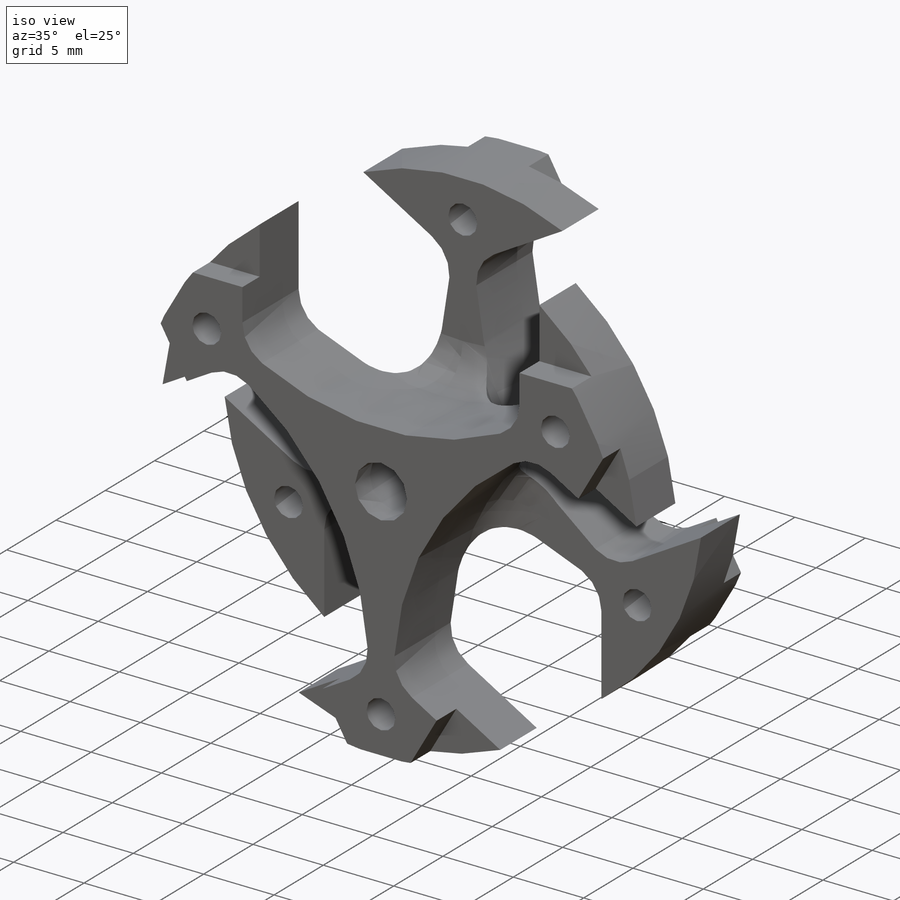
[diagram: iso view]
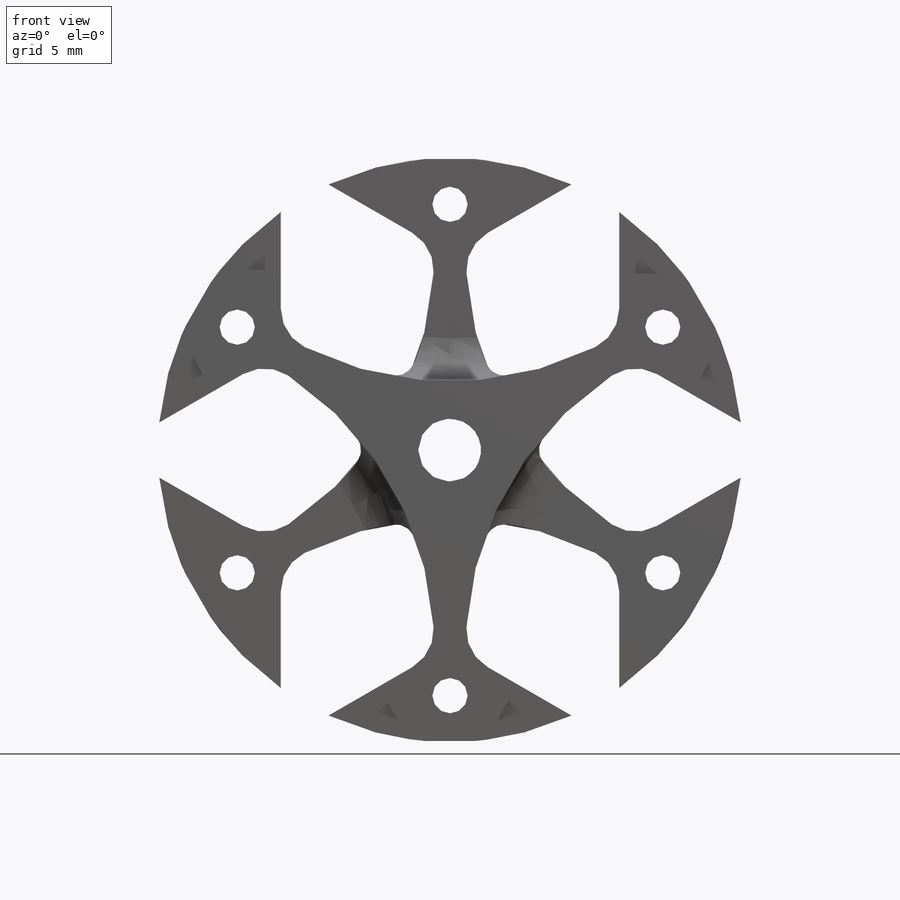
[diagram: front view]
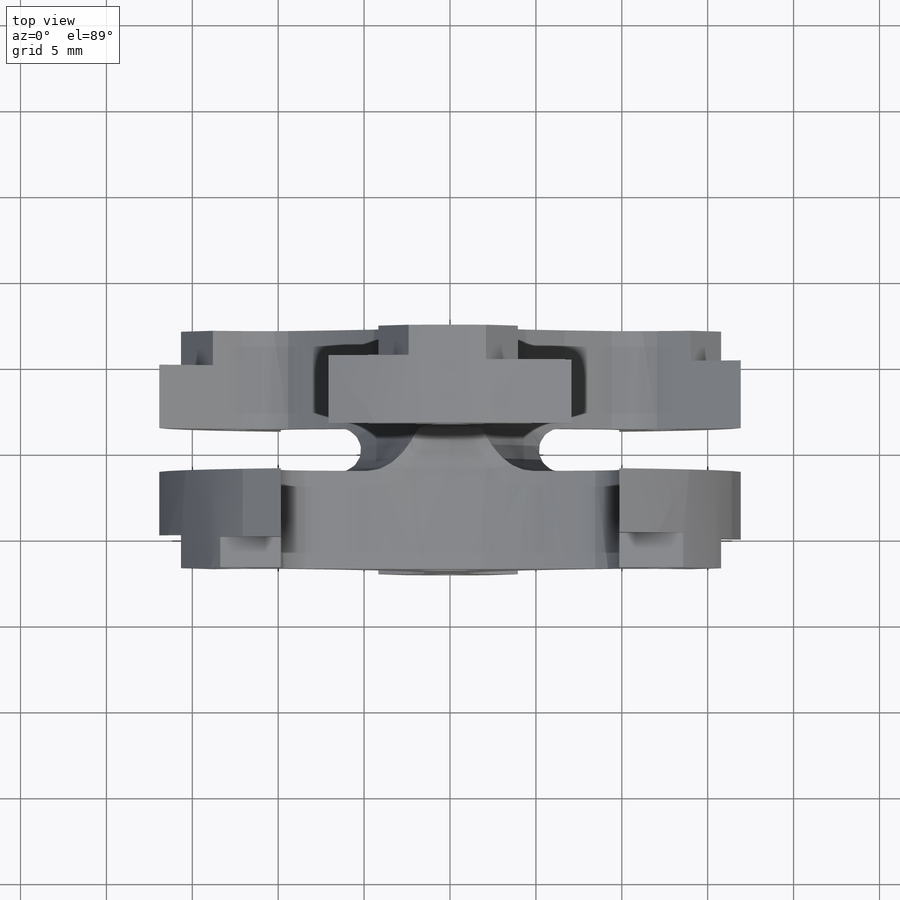
[diagram: top view]
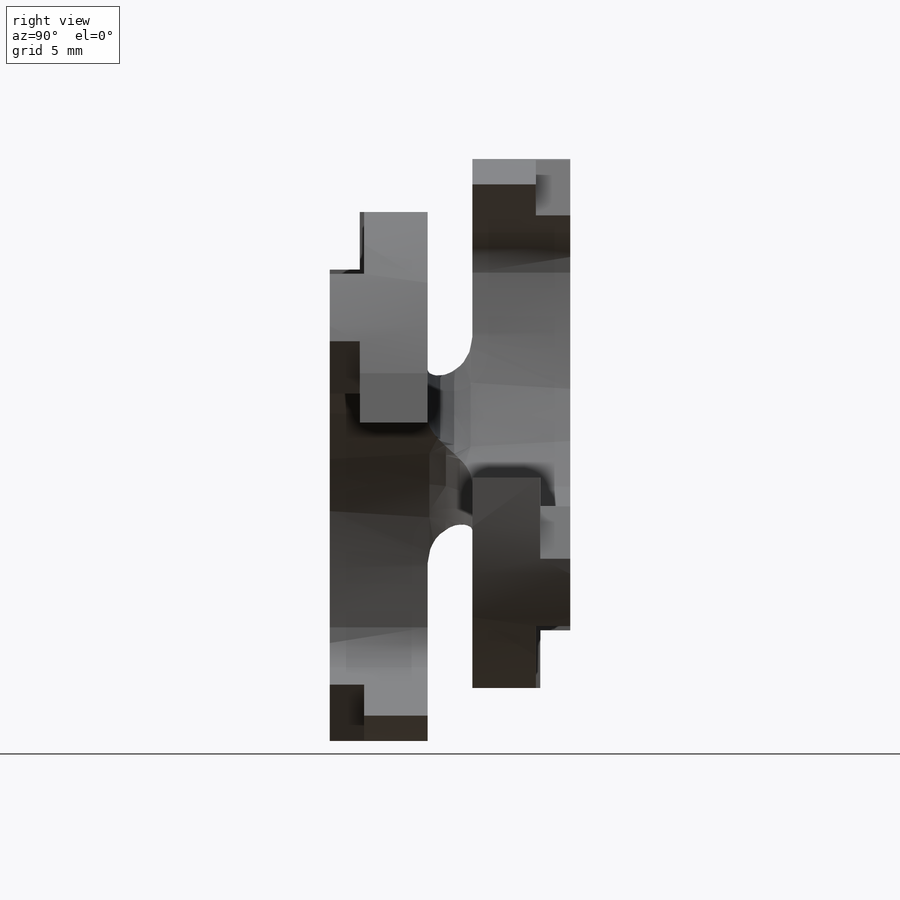
[diagram: right view]
SOLIDWORKS PART (.sldprt)
format: sldprt  version: not decoded by parser v0  size: 495,104 bytes
history: native  units: mm
features: sketch x12, cut_extrude x6, plane x3, hole x2, thread x2, fillet x2, material x1, extrude x1, pattern_circular x1, cut_revolve x1 (+10 scaffold rows collapsed)
feature tree (41):
  scaffold x10  (default folders/planes/origin — collapsed)
  material  "7075-T6 (SN)"
  plane  "Face"
  plane  "Dessus"
  plane  "Droite"
  sketch  "Esquisse1"  dims[D1=34.0mm]
  extrude  "Boss.-Extru.1"  Depth=14mm
  sketch  "Esquisse2"  dims[D1=19.0mm D4=2.5mm D2=23.0mm D3=19.7mm D5=6.0]
  cut_extrude  "Enlèv. mat.-Extru.1"  Depth=8.3mm
  cut_extrude  "Enlèv. mat.-Extru.3"  [1 undecoded]
  sketch  "Esquisse2<3>"  dims[D1=8.3mm]
  sketch  "Esquisse5"  dims[D1=10.5mm]
  cut_extrude  "Enlèv. mat.-Extru.5"  Depth=1.75mm
  sketch  "Esquisse6"  dims[D1=10.25mm]
  cut_extrude  "Enlèv. mat.-Extru.6"  Depth=2mm
  sketch  "Esquisse7"  dims[D1=10.5mm]
  cut_extrude  "Enlèv. mat.-Extru.7"  Depth=1.75mm
  sketch  "Esquisse8"  dims[D1=10.25mm]
  cut_extrude  "Enlèv. mat.-Extru.8"  Depth=2mm
  hole  "Trou taraudé M2.51"  Diameter=2.05mm Depth=14mm
  sketch  "Esquisse10"  dims[D1=14.3mm]
  sketch  "Esquisse9"  dims[hole-wizard template sketch: 59 standard entries collapsed; hole parameters kept: c18.Diamètre du trou pour taraudage jusqu'au prochain=2.05mm c18.Profondeur du trou pour taraudage jusqu'au prochain=14.0mm]
  thread  "Filetage de perçage2"  Diameter=2.5mm  [1 undecoded]
  hole  "Trou taraudé M2.52"  Diameter=2.05mm Depth=14mm
  sketch  "Esquisse12"  dims[D1=14.3mm]
  sketch  "Esquisse11"  dims[hole-wizard template sketch: 59 standard entries collapsed; hole parameters kept: c18.Diamètre du trou pour taraudage jusqu'au prochain=2.05mm c18.Profondeur du trou pour taraudage jusqu'au prochain=14.0mm]
  thread  "Filetage de perçage3"  Diameter=2.5mm  [1 undecoded]
  pattern_circular  "Répétition circulaire1"  Count=3 Angle=360deg
  fillet  "Congé3"  Radius=2.5mm
  fillet  "Congé4"  Radius=2.5mm
  sketch  "Esquisse13"  dims[c1.D1=6.2mm c1.D2=3.7mm c1.D3=14.0mm c2.D3=11.42deg c3.D3=12.5mm c3.D4=14.0mm c4.D4=~5.710593deg]
  cut_revolve  "Enlèvement de matière-Révolution1"  Angle=360deg
decode coverage: 26 of 27 modeling features carry decoded parameters
note: ~ marks probable driven/reference dimensions
note: 3 parameter values undecoded
note: suppression state not decoded; provenance and decode notes live in map.json
